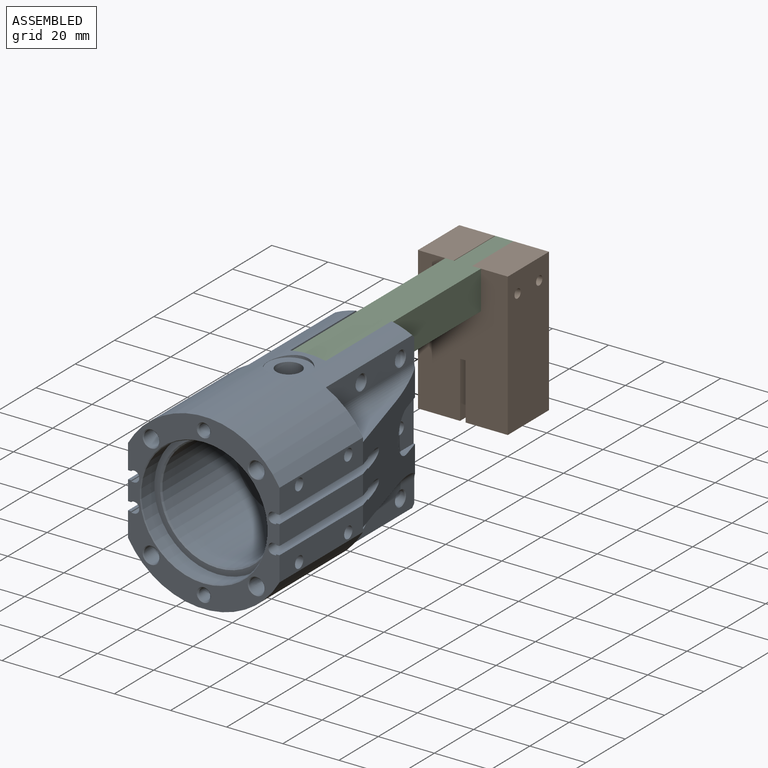
[diagram: assembled view]
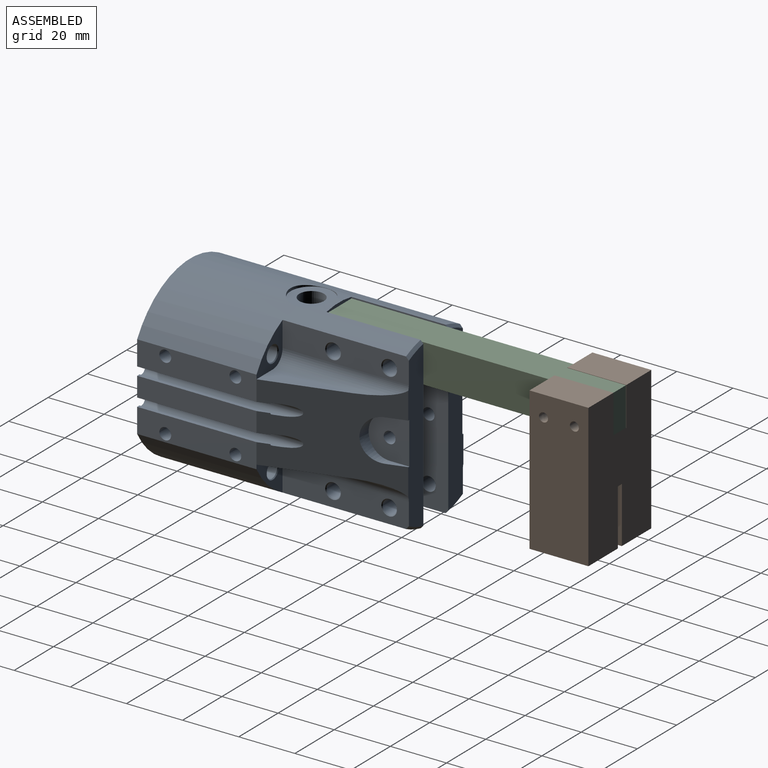
[diagram: assembled view, second angle]
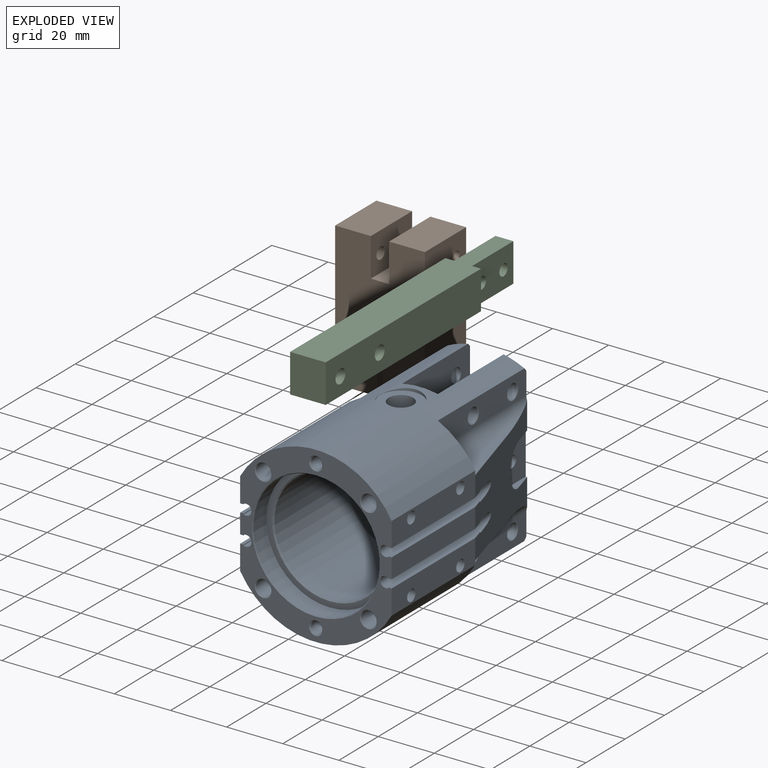
[diagram: exploded view]
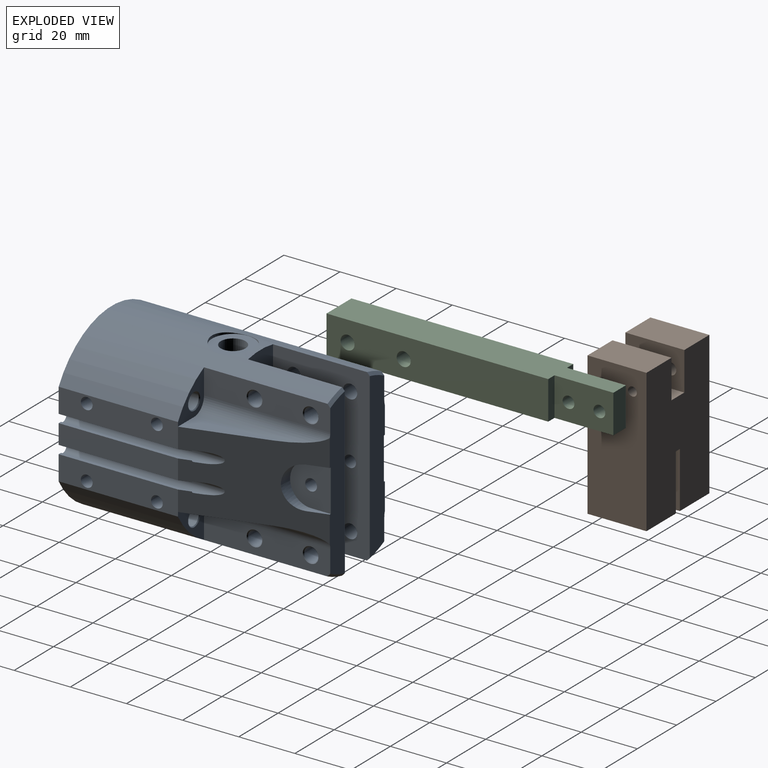
[diagram: exploded view, second angle]
ASSEMBLY  parts=3 mates=2
PART A: 177 faces, bbox 54x87.5x62 mm
  f0: cylinder r=31mm len=86.5mm, axis (0,1,0), area 3496mm2, adj f39,f81,f83,f88,f89,f91,f95,f96
  f1: cone r=2.85mm half-angle=45deg, axis (0,-1,0), area 8mm2, adj f72,f99
  f2: cone r=4.1mm half-angle=45deg, axis (0,-1,0), area 11.3mm2, adj f75,f99
  f3: cone r=4.1mm half-angle=45deg, axis (0,-1,0), area 11.3mm2, adj f77,f99
  f4: cone r=2.75mm half-angle=45deg, axis (0,1,0), area 7.7mm2, adj f67,f108
  f5: cone r=3.05mm half-angle=45deg, axis (0,1,0), area 7.7mm2, adj f68,f90
  f6: cone r=2.75mm half-angle=45deg, axis (0,1,0), area 7.7mm2, adj f69,f103
  f7: cone r=3.05mm half-angle=45deg, axis (0,1,0), area 7.7mm2, adj f66,f89
  f8: cone r=2.75mm half-angle=45deg, axis (0,-1,0), area 7.7mm2, adj f66,f81
  f9: cone r=3.05mm half-angle=45deg, axis (0,-1,0), area 7.7mm2, adj f67,f81
  f10: cone r=2.75mm half-angle=45deg, axis (0,-1,0), area 7.7mm2, adj f68,f81
  f11: cone r=3.05mm half-angle=45deg, axis (0,-1,0), area 7.7mm2, adj f69,f81
  f12: cone r=4.1mm half-angle=45deg, axis (0,1,0), area 11.3mm2, adj f76,f96
  f13: cone r=3.15mm half-angle=45deg, axis (0,1,0), area 8mm2, adj f71,f96
  f14: cone r=4.1mm half-angle=45deg, axis (0,1,0), area 11.3mm2, adj f74,f96
  f15: cone r=2.8mm half-angle=45deg, axis (1,0,0), area 7.1mm2, adj f64,f100
  f16: cone r=2.8mm half-angle=45deg, axis (1,0,0), area 7.1mm2, adj f58,f100
  f17: cone r=2.5mm half-angle=45deg, axis (1,0,0), area 7.1mm2, adj f62,f104
  f18: cone r=2.5mm half-angle=45deg, axis (1,0,0), area 7.1mm2, adj f60,f104
  f19: cone r=2.5mm half-angle=45deg, axis (-1,0,0), area 7.1mm2, adj f65,f111
  f20: cone r=2.8mm half-angle=45deg, axis (-1,0,0), area 7.1mm2, adj f63,f107
  f21: cone r=2.8mm half-angle=45deg, axis (-1,0,0), area 7.1mm2, adj f61,f107
  f22: cone r=2.5mm half-angle=45deg, axis (-1,0,0), area 7.1mm2, adj f59,f111
  f23: cylinder r=2.1mm len=7.15mm, axis (-1,0,0), area 94.3mm2, adj f97,f172
  f24: cone r=20.5mm half-angle=45deg, axis (0,-1,0), area 90mm2, adj f73,f156
  f25: cone r=2mm half-angle=45deg, axis (0,-1,0), area 10mm2, adj f28,f81
  f26: cone r=2mm half-angle=45deg, axis (0,-1,0), area 10mm2, adj f30,f81
  f27: cone r=2mm half-angle=59deg, axis (0,-1,0), area 14.7mm2, adj f28
  f28: cylinder r=2mm len=5.5mm, axis (0,1,0), area 69.1mm2, adj f25,f27
  f29: cone r=2mm half-angle=59deg, axis (0,-1,0), area 14.7mm2, adj f30
  f30: cylinder r=2mm len=5.5mm, axis (0,1,0), area 69.1mm2, adj f26,f29
  f31: cone r=22.5mm half-angle=45deg, axis (0,-1,0), area 60.4mm2, adj f34,f81
  f32: cylinder r=5.55mm len=11.1mm, axis (0,-1,0), area 83.7mm2, adj f159,f160
  f33: cylinder r=5.55mm len=11.1mm, axis (0,-1,0), area 83.7mm2, adj f157,f158
  f34: cylinder r=22.5mm len=45mm, axis (0,1,0), area 947.2mm2, adj f31,f156
  f35: cylinder r=4.2mm len=8.4mm, axis (0,-1,0), area 63.3mm2, adj f154,f155
  f36: cylinder r=4.4mm len=9mm, axis (0,0,1), area 248.8mm2, adj f150,f153
  f37: cylinder r=4.4mm len=9mm, axis (0,0,-1), area 248.8mm2, adj f151,f152
  f38: cylinder r=0.75mm len=1.5mm, axis (0,0,1), area 4.7mm2, adj f73,f152
  f39: cylinder r=7.5mm len=15mm, axis (0,0,1), area 25.5mm2, adj f0,f151
  f40: cylinder r=0.75mm len=1.5mm, axis (0,0,-1), area 4.7mm2, adj f73,f153
  f41: cylinder r=7.5mm len=15mm, axis (0,0,-1), area 25.5mm2, adj f70,f150
  f42: cone r=2.1mm half-angle=59deg, axis (1,0,0), area 16.2mm2, adj f43
  f43: cylinder r=2.1mm len=9mm, axis (-1,0,0), area 118.8mm2, adj f42,f88
  f44: cone r=2.1mm half-angle=59deg, axis (1,0,0), area 16.2mm2, adj f45
  f45: cylinder r=2.1mm len=9mm, axis (-1,0,0), area 118.8mm2, adj f44,f88
  f46: cone r=2.1mm half-angle=59deg, axis (1,0,0), area 16.2mm2, adj f47
  f47: cylinder r=2.1mm len=9mm, axis (-1,0,0), area 118.8mm2, adj f46,f87
  f48: cone r=2.1mm half-angle=59deg, axis (1,0,0), area 16.2mm2, adj f49
  f49: cylinder r=2.1mm len=9mm, axis (-1,0,0), area 118.8mm2, adj f48,f87
  f50: cone r=2.1mm half-angle=59deg, axis (-1,0,0), area 16.2mm2, adj f51
  f51: cylinder r=2.1mm len=9mm, axis (1,0,0), area 118.8mm2, adj f50,f83
  f52: cone r=2.1mm half-angle=59deg, axis (-1,0,0), area 16.2mm2, adj f53
  f53: cylinder r=2.1mm len=9mm, axis (1,0,0), area 118.8mm2, adj f52,f83
  f54: cone r=2.1mm half-angle=59deg, axis (-1,0,0), area 16.2mm2, adj f55
  f55: cylinder r=2.1mm len=9mm, axis (1,0,0), area 118.8mm2, adj f54,f84
  f56: cone r=2.1mm half-angle=59deg, axis (-1,0,0), area 16.2mm2, adj f57
  f57: cylinder r=2.1mm len=9mm, axis (1,0,0), area 118.8mm2, adj f56,f84
  f58: cylinder r=2.5mm len=7.09mm, axis (-1,0,0), area 111.3mm2, adj f16,f97
  f59: cylinder r=2.5mm len=7.09mm, axis (-1,0,0), area 111.3mm2, adj f22,f98
  f60: cylinder r=2.5mm len=7.09mm, axis (-1,0,0), area 111.3mm2, adj f18,f97
  f61: cylinder r=2.5mm len=7.09mm, axis (-1,0,0), area 111.3mm2, adj f21,f98
  f62: cylinder r=2.5mm len=7.09mm, axis (-1,0,0), area 111.3mm2, adj f17,f97
  f63: cylinder r=2.5mm len=7.09mm, axis (-1,0,0), area 111.3mm2, adj f20,f98
  f64: cylinder r=2.5mm len=7.09mm, axis (-1,0,0), area 111.3mm2, adj f15,f97
  f65: cylinder r=2.5mm len=7.09mm, axis (-1,0,0), area 111.3mm2, adj f19,f98
  f66: cylinder r=2.75mm len=41.9mm, axis (0,-1,0), area 724mm2, adj f7,f8
  f67: cylinder r=2.75mm len=41.9mm, axis (0,-1,0), area 724mm2, adj f4,f9
  f68: cylinder r=2.75mm len=41.9mm, axis (0,-1,0), area 724mm2, adj f5,f10
  f69: cylinder r=2.75mm len=41.9mm, axis (0,-1,0), area 724mm2, adj f6,f11
  f70: cylinder r=31mm len=86.5mm, axis (0,1,0), area 3496mm2, adj f41,f81,f84,f87,f90,f92,f94,f96
  f71: cylinder r=2.85mm len=5.7mm, axis (0,1,0), area 80.6mm2, adj f13,f155
  f72: cylinder r=2.85mm len=5.7mm, axis (0,1,0), area 26.9mm2, adj f1,f154
  f73: cylinder r=20mm len=40mm, axis (0,1,0), area 4584.5mm2, adj f24,f38,f40,f99
  f74: cylinder r=4.1mm len=8.2mm, axis (0,-1,0), area 38.6mm2, adj f14,f158
  f75: cylinder r=4.1mm len=8.2mm, axis (0,-1,0), area 115.9mm2, adj f2,f157
  f76: cylinder r=4.1mm len=8.2mm, axis (0,-1,0), area 38.6mm2, adj f12,f160
  f77: cylinder r=4.1mm len=8.2mm, axis (0,-1,0), area 115.9mm2, adj f3,f159
  f78: cylinder r=2.1mm len=7.15mm, axis (-1,0,0), area 94.3mm2, adj f98,f173
  f79: plane 45x34.28mm, normal (-0.96,0.28,0), area 1024.5mm2, adj f80,f82,f83,f84,f109,f110,f112,f113
  f80: plane 58.64x7.65mm, normal (0,1,0), area 418.1mm2, adj f79,f91,f94,f98,f107,f109,f111,f112
  f81: plane 62x54mm, normal (0,-1,0), area 1013.8mm2, adj f0,f8,f9,f10,f11,f25,f26,f31
  f82: plane 42.5x7mm, normal (-1,0,0), area 297.5mm2, adj f79,f81,f134,f148
  f83: plane 42.5x8.73mm, normal (-1,0,0), area 343.4mm2, adj f0,f51,f53,f79,f81,f89,f149
  f84: plane 42.5x8.73mm, normal (-1,0,0), area 343.4mm2, adj f55,f57,f70,f79,f81,f108,f133
  f85: plane 45x34.28mm, normal (0.96,0.28,0), area 1024.5mm2, adj f86,f87,f88,f93,f101,f102,f105,f106
  f86: plane 42.5x7mm, normal (1,0,0), area 297.5mm2, adj f81,f85,f122,f130
  f87: plane 42.5x8.73mm, normal (1,0,0), area 343.4mm2, adj f47,f49,f70,f81,f85,f90,f131
  f88: plane 42.5x8.73mm, normal (1,0,0), area 343.4mm2, adj f0,f43,f45,f81,f85,f103,f121
  f89: plane 14.05x13.26mm, normal (0,1,0), area 85.3mm2, adj f0,f7,f83,f111,f112,f113
  f90: plane 14.05x13.26mm, normal (0,1,0), area 85.3mm2, adj f5,f70,f87,f104,f105,f106
  f91: cone r=30mm half-angle=45deg, axis (0,-1,0), area 11.1mm2, adj f0,f80,f98,f111
  f92: cone r=30mm half-angle=45deg, axis (0,-1,0), area 11.1mm2, adj f70,f93,f97,f104
  f93: plane 58.64x7.65mm, normal (0,1,0), area 418.1mm2, adj f85,f92,f95,f97,f100,f101,f104,f105
  f94: cone r=30mm half-angle=45deg, axis (0,-1,0), area 11.1mm2, adj f70,f80,f98,f107
  f95: cone r=30mm half-angle=45deg, axis (0,-1,0), area 11.1mm2, adj f0,f93,f97,f100
  f96: plane 62x12.7mm, normal (0,1,0), area 629mm2, adj f0,f12,f13,f14,f70,f97,f98
  f97: plane 60.69x34.5mm, normal (-1,0,0), area 2000.2mm2, adj f0,f23,f58,f60,f62,f64,f70,f92
  f98: plane 60.69x34.5mm, normal (1,0,0), area 2000.2mm2, adj f0,f59,f61,f63,f65,f70,f78,f80
  f99: plane 40x40mm, normal (0,-1,0), area 1103.8mm2, adj f1,f2,f3,f73
  f100: plane 45.01x9.06mm, normal (1,0,0), area 357.5mm2, adj f0,f15,f16,f93,f95,f101,f103
  f101: cylinder r=5mm len=45mm, axis (0,-1,0), area 310.2mm2, adj f85,f93,f100,f102,f103
  f102: plane 28.6x8.26mm, normal (0,0,1), area 118.1mm2, adj f85,f101,f103
  f103: plane 14.05x13.26mm, normal (0,1,0), area 85.3mm2, adj f0,f6,f88,f100,f101,f102
  f104: plane 45.01x9.06mm, normal (1,0,0), area 357.5mm2, adj f17,f18,f70,f90,f92,f93,f105
  f105: cylinder r=5mm len=45mm, axis (0,-1,0), area 310.2mm2, adj f85,f90,f93,f104,f106
  f106: plane 28.6x8.26mm, normal (0,0,-1), area 118.1mm2, adj f85,f90,f105
  f107: plane 45.01x9.06mm, normal (-1,0,0), area 357.5mm2, adj f20,f21,f70,f80,f94,f108,f109
  f108: plane 14.05x13.26mm, normal (0,1,0), area 85.3mm2, adj f4,f70,f84,f107,f109,f110
  f109: cylinder r=5mm len=45mm, axis (0,-1,0), area 310.2mm2, adj f79,f80,f107,f108,f110
  f110: plane 28.6x8.26mm, normal (0,0,-1), area 118.1mm2, adj f79,f108,f109
  f111: plane 45.01x9.06mm, normal (-1,0,0), area 357.5mm2, adj f0,f19,f22,f80,f89,f91,f112
  f112: cylinder r=5mm len=45mm, axis (0,-1,0), area 310.2mm2, adj f79,f80,f89,f111,f113
  f113: plane 28.6x8.26mm, normal (0,0,1), area 118.1mm2, adj f79,f89,f112
  f114: plane 46.65x0.2mm, normal (-1,0,0), area 9.3mm2, adj f81,f85,f121,f168
  f115: plane 46.65x0.2mm, normal (-1,0,0), area 9.3mm2, adj f81,f85,f122,f167
  f116: plane 50.12x0.8mm, normal (0,0,1), area 39mm2, adj f81,f85,f117,f167
  f117: cylinder r=1.8mm len=56.35mm, axis (0,1,0), area 152.9mm2, adj f81,f85,f116,f118
  f118: plane 56.35x0.2mm, normal (1,0,0), area 11.3mm2, adj f81,f85,f117,f119
  f119: cylinder r=1.8mm len=56.35mm, axis (0,1,0), area 152.9mm2, adj f81,f85,f118,f120
  f120: plane 50.12x0.8mm, normal (0,0,-1), area 39mm2, adj f81,f85,f119,f168
  f121: plane 46.65x1.2mm, normal (0,0,-1), area 53.5mm2, adj f81,f85,f88,f114
  f122: plane 46.65x1.2mm, normal (0,0,1), area 53.5mm2, adj f81,f85,f86,f115
  f123: plane 46.65x0.2mm, normal (-1,0,0), area 9.3mm2, adj f81,f85,f131,f166
  f124: plane 50.12x0.8mm, normal (0,0,1), area 39mm2, adj f81,f85,f125,f166
  f125: cylinder r=1.8mm len=56.35mm, axis (0,1,0), area 152.9mm2, adj f81,f85,f124,f126
  f126: plane 56.35x0.2mm, normal (1,0,0), area 11.3mm2, adj f81,f85,f125,f127
  f127: cylinder r=1.8mm len=56.35mm, axis (0,1,0), area 152.9mm2, adj f81,f85,f126,f128
  f128: plane 50.12x0.8mm, normal (0,0,-1), area 39mm2, adj f81,f85,f127,f165
  f129: plane 46.65x0.2mm, normal (-1,0,0), area 9.3mm2, adj f81,f85,f130,f165
  f130: plane 46.65x1.2mm, normal (0,0,-1), area 53.5mm2, adj f81,f85,f86,f129
  f131: plane 46.65x1.2mm, normal (0,0,1), area 53.5mm2, adj f81,f85,f87,f123
  f132: plane 46.65x0.2mm, normal (1,0,0), area 9.3mm2, adj f79,f81,f133,f161
  f133: plane 46.65x1.2mm, normal (0,0,1), area 53.5mm2, adj f79,f81,f84,f132
  f134: plane 46.65x1.2mm, normal (0,0,-1), area 53.5mm2, adj f79,f81,f82,f135
  f135: plane 46.65x0.2mm, normal (1,0,0), area 9.3mm2, adj f79,f81,f134,f162
  f136: plane 50.12x0.8mm, normal (0,0,-1), area 39mm2, adj f79,f81,f137,f162
  f137: cylinder r=1.8mm len=56.35mm, axis (0,1,0), area 152.9mm2, adj f79,f81,f136,f138
  f138: plane 56.35x0.2mm, normal (-1,0,0), area 11.3mm2, adj f79,f81,f137,f139
  f139: cylinder r=1.8mm len=56.35mm, axis (0,1,0), area 152.9mm2, adj f79,f81,f138,f140
  f140: plane 50.12x0.8mm, normal (0,0,1), area 39mm2, adj f79,f81,f139,f161
  f141: plane 46.65x0.2mm, normal (1,0,0), area 9.3mm2, adj f79,f81,f149,f163
  f142: plane 50.12x0.8mm, normal (0,0,-1), area 39mm2, adj f79,f81,f143,f163
  f143: cylinder r=1.8mm len=56.35mm, axis (0,1,0), area 152.9mm2, adj f79,f81,f142,f144
  f144: plane 56.35x0.2mm, normal (-1,0,0), area 11.3mm2, adj f79,f81,f143,f145
  f145: cylinder r=1.8mm len=56.35mm, axis (0,1,0), area 152.9mm2, adj f79,f81,f144,f146
  f146: plane 50.12x0.8mm, normal (0,0,1), area 39mm2, adj f79,f81,f145,f164
  f147: plane 46.65x0.2mm, normal (1,0,0), area 9.3mm2, adj f79,f81,f148,f164
  f148: plane 46.65x1.2mm, normal (0,0,1), area 53.5mm2, adj f79,f81,f82,f147
  f149: plane 46.65x1.2mm, normal (0,0,-1), area 53.5mm2, adj f79,f81,f83,f141
  f150: plane 15x15mm, normal (0,0,-1), area 115.9mm2, adj f36,f41
  f151: plane 15x15mm, normal (0,0,1), area 115.9mm2, adj f37,f39
  f152: plane 8.8x8.8mm, normal (0,0,1), area 59.1mm2, adj f37,f38
  f153: plane 8.8x8.8mm, normal (0,0,-1), area 59.1mm2, adj f36,f40
  f154: plane 8.4x8.4mm, normal (0,1,0), area 29.9mm2, adj f35,f72
  f155: plane 8.4x8.4mm, normal (0,-1,0), area 29.9mm2, adj f35,f71
  f156: plane 45x45mm, normal (0,-1,0), area 270.2mm2, adj f24,f34
  f157: plane 11.1x11.1mm, normal (0,1,0), area 44mm2, adj f33,f75
  f158: plane 11.1x11.1mm, normal (0,-1,0), area 44mm2, adj f33,f74
  f159: plane 11.1x11.1mm, normal (0,1,0), area 44mm2, adj f32,f77
  f160: plane 11.1x11.1mm, normal (0,-1,0), area 44mm2, adj f32,f76
  f161: cylinder r=0.2mm len=47.35mm, axis (0,-1,0), area 14.7mm2, adj f79,f81,f132,f140
  f162: cylinder r=0.2mm len=47.35mm, axis (0,-1,0), area 14.7mm2, adj f79,f81,f135,f136
  f163: cylinder r=0.2mm len=47.35mm, axis (0,-1,0), area 14.7mm2, adj f79,f81,f141,f142
  f164: cylinder r=0.2mm len=47.35mm, axis (0,-1,0), area 14.7mm2, adj f79,f81,f146,f147
  f165: cylinder r=0.2mm len=47.35mm, axis (0,-1,0), area 14.7mm2, adj f81,f85,f128,f129
  f166: cylinder r=0.2mm len=47.35mm, axis (0,-1,0), area 14.7mm2, adj f81,f85,f123,f124
  f167: cylinder r=0.2mm len=47.35mm, axis (0,-1,0), area 14.7mm2, adj f81,f85,f115,f116
  f168: cylinder r=0.2mm len=47.35mm, axis (0,-1,0), area 14.7mm2, adj f81,f85,f114,f120
  f169: cylinder r=7.5mm len=15mm, axis (-1,0,0), area 91.9mm2, adj f85,f170,f171,f172
  f170: plane 7x2.52mm, normal (0,0,1), area 10.6mm2, adj f85,f93,f169,f172
  f171: plane 7x2.52mm, normal (0,0,-1), area 10.6mm2, adj f85,f93,f169,f172
  f172: plane 15x14.5mm, normal (1,0,0), area 179.5mm2, adj f23,f93,f169,f170,f171
  f173: plane 15x14.5mm, normal (-1,0,0), area 179.5mm2, adj f78,f80,f174,f175,f176
  f174: plane 7x2.52mm, normal (0,0,-1), area 10.6mm2, adj f79,f80,f173,f175
  f175: cylinder r=7.5mm len=15mm, axis (1,0,0), area 91.9mm2, adj f79,f173,f174,f176
  f176: plane 7x2.52mm, normal (0,0,1), area 10.6mm2, adj f79,f80,f173,f175
PART B: 22 faces, bbox 21x32x51 mm
  f0: plane 51x32mm, normal (1,0,0), area 1502.3mm2, adj f2,f3,f4,f5,f6,f7,f8,f9
  f1: plane 51x32mm, normal (-1,0,0), area 1502.3mm2, adj f2,f3,f4,f5,f6,f7,f8,f9
  f2: plane 21x2mm, normal (0,0,-1), area 42mm2, adj f0,f1,f3,f8
  f3: plane 21x20mm, normal (0,-1,0), area 420mm2, adj f0,f1,f2,f4
  f4: plane 21x15mm, normal (0,0,-1), area 315mm2, adj f0,f1,f3,f5
  f5: plane 51x21mm, normal (0,1,0), area 1054.9mm2, adj f0,f1,f4,f18,f19,f21
  f6: plane 51x21mm, normal (0,-1,0), area 964.1mm2, adj f0,f1,f7,f14,f17,f20
  f7: plane 21x15mm, normal (0,0,-1), area 315mm2, adj f0,f1,f6,f8
  f8: plane 21x20mm, normal (0,1,0), area 420mm2, adj f0,f1,f2,f7
  f9: plane 21x13.7mm, normal (0,-1,0), area 271.6mm2, adj f0,f1,f11,f18,f19,f21
  f10: plane 21x13.7mm, normal (0,1,0), area 260mm2, adj f0,f1,f11,f12,f15,f20
  f11: plane 21x6.55mm, normal (0,0,1), area 137.6mm2, adj f0,f1,f9,f10
  f12: cylinder r=2.1mm len=8.73mm, axis (0,-1,0), area 115.1mm2, adj f10,f13
  f13: plane 8.25x8.25mm, normal (0,-1,0), area 39.6mm2, adj f12,f14
  f14: cylinder r=4.12mm len=8.25mm, axis (0,-1,0), area 103.7mm2, adj f6,f13
  f15: cylinder r=2.1mm len=8.73mm, axis (0,-1,0), area 115.1mm2, adj f10,f16
  f16: plane 8.25x8.25mm, normal (0,-1,0), area 39.6mm2, adj f15,f17
  f17: cylinder r=4.12mm len=8.25mm, axis (0,-1,0), area 103.7mm2, adj f6,f16
  f18: cylinder r=1.6mm len=12.73mm, axis (0,1,0), area 127.9mm2, adj f5,f9
  f19: cylinder r=1.6mm len=12.73mm, axis (0,1,0), area 127.9mm2, adj f5,f9
  f20: plane 21x12.73mm, normal (0,0,1), area 267.2mm2, adj f0,f1,f6,f10
  f21: plane 21x12.73mm, normal (0,0,1), area 267.2mm2, adj f0,f1,f5,f9
PART C: 14 faces, bbox 13.7x12.7x100 mm
  f0: plane 13.7x6.35mm, normal (0,0,1), area 87mm2, adj f6,f8,f10,f13
  f1: plane 79x13.7mm, normal (0,-1,0), area 1043mm2, adj f3,f4,f5,f6,f7,f13
  f2: plane 79x13.7mm, normal (0,1,0), area 1043mm2, adj f3,f4,f5,f6,f9,f13
  f3: plane 13.7x12.7mm, normal (0,0,-1), area 174mm2, adj f1,f2,f6,f13
  f4: cylinder r=2.5mm len=12.7mm, axis (0,1,0), area 199.5mm2, adj f1,f2
  f5: cylinder r=2.5mm len=12.7mm, axis (0,1,0), area 199.5mm2, adj f1,f2
  f6: plane 100x12.7mm, normal (1,0,0), area 1136.6mm2, adj f0,f1,f2,f3,f7,f8,f9,f10
  f7: plane 13.7x3.18mm, normal (0,0,1), area 43.5mm2, adj f1,f6,f8,f13
  f8: plane 21x13.7mm, normal (0,-1,0), area 260mm2, adj f0,f6,f7,f11,f12,f13
  f9: plane 13.7x3.18mm, normal (0,0,1), area 43.5mm2, adj f2,f6,f10,f13
  f10: plane 21x13.7mm, normal (0,1,0), area 260mm2, adj f0,f6,f9,f11,f12,f13
  f11: cylinder r=2.1mm len=6.35mm, axis (0,-1,0), area 83.8mm2, adj f8,f10
  f12: cylinder r=2.1mm len=6.35mm, axis (0,-1,0), area 83.8mm2, adj f8,f10
  f13: plane 100x12.7mm, normal (-1,0,0), area 1136.6mm2, adj f0,f1,f2,f3,f7,f8,f9,f10
PLACE A t=(-29.03,-161.63,46.72)mm fixed
PLACE B rot(axis=(0,0,-1),90deg) t=(-29.13,-8.63,50.57)mm
PLACE C rot(axis=(-0.58,0.58,0.58),120deg) t=(-35.38,-58.63,69.22)mm
MATE fastened C.f12 <-> B.f15  axis (1,0,0) through (-25.86,-24.63,69.22)mm
MATE fastened C.f4 <-> A.f16  axis (1,0,0) through (-22.68,-101.13,69.22)mm
